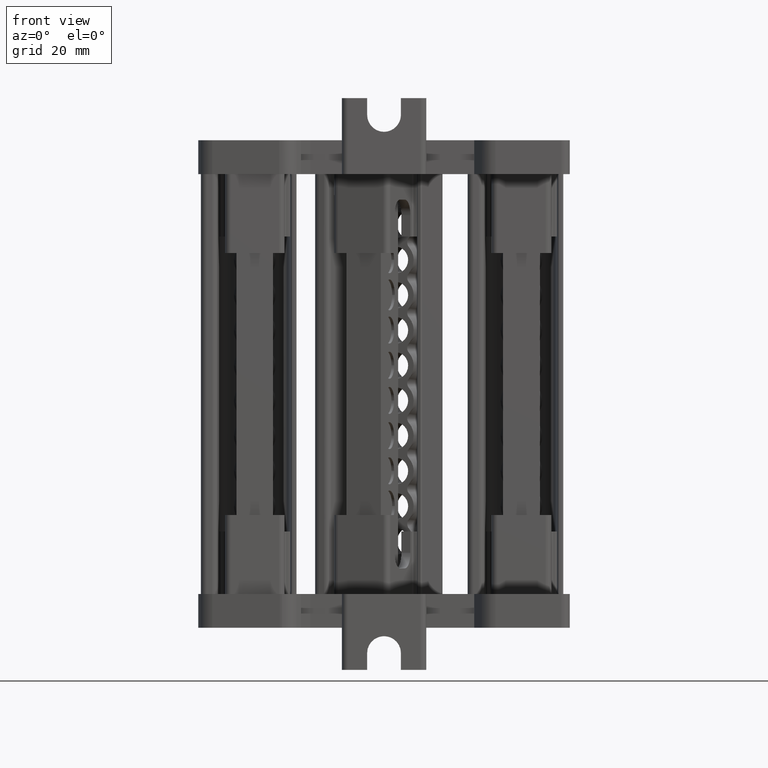
[diagram: clean part render]
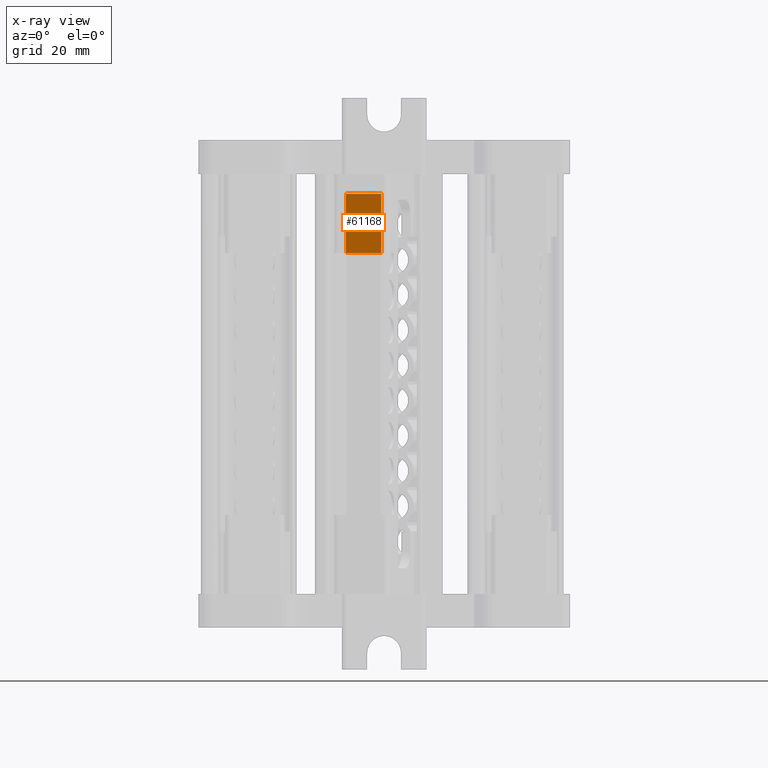
[diagram: x-ray — body ghosted, one internal face saturated and labeled with its STEP entity id]
A machine part, front view, then the same camera in x-ray: the body is ghosted and one INTERNAL B-rep face — a face not visible from any outside direction — is saturated and labeled: STEP entity #61168.
In plain terms, the highlighted planar face has unit normal (-0.342, -0.9397, 0).
Its self-contained STEP definition (entity closure, byte-faithful):
#10859 = CARTESIAN_POINT ( 'NONE',  ( -298.3908377496268300, 203.9591782187405300, 86.29336666203808200 ) ) ;
#10895 = CARTESIAN_POINT ( 'NONE',  ( -304.6686897275751600, 206.2441223605529800, 86.29336666203808200 ) ) ;
#11036 = CARTESIAN_POINT ( 'NONE',  ( -298.3908377496268300, 203.9591782187405300, 96.78362721523144800 ) ) ;
#11325 = CARTESIAN_POINT ( 'NONE',  ( -304.6686897275751600, 206.2441223605529800, 96.78362721523144800 ) ) ;
#18421 = ORIENTED_EDGE ( 'NONE', *, *, #44321, .F. ) ;
#18433 = ORIENTED_EDGE ( 'NONE', *, *, #43891, .F. ) ;
#18435 = ORIENTED_EDGE ( 'NONE', *, *, #43943, .F. ) ;
#18484 = ORIENTED_EDGE ( 'NONE', *, *, #44290, .T. ) ;
#37486 = VECTOR ( 'NONE', #56392, 1000.000000000000000 ) ;
#37526 = VECTOR ( 'NONE', #56286, 1000.000000000000000 ) ;
#38194 = VECTOR ( 'NONE', #69273, 999.9999999999998900 ) ;
#38251 = VECTOR ( 'NONE', #69355, 999.9999999999998900 ) ;
#43891 = EDGE_CURVE ( 'NONE', #91796, #91626, #56277, .T. ) ;
#43943 = EDGE_CURVE ( 'NONE', #91663, #91661, #56376, .T. ) ;
#44290 = EDGE_CURVE ( 'NONE', #91663, #91626, #69212, .T. ) ;
#44321 = EDGE_CURVE ( 'NONE', #91661, #91796, #69354, .T. ) ;
#54679 = EDGE_LOOP ( 'NONE', ( #18435, #18484, #18433, #18421 ) ) ;
#56276 = CARTESIAN_POINT ( 'NONE',  ( -304.6686897275751600, 206.2441223605529200, 96.31158751801014300 ) ) ;
#56277 = LINE ( 'NONE', #56276, #37526 ) ;
#56286 = DIRECTION ( 'NONE',  ( -0.0000000000000000000, -0.0000000000000000000, -1.000000000000000000 ) ) ;
#56376 = LINE ( 'NONE', #56387, #37486 ) ;
#56387 = CARTESIAN_POINT ( 'NONE',  ( -298.3908377496268800, 203.9591782187404200, 96.31158751801014300 ) ) ;
#56392 = DIRECTION ( 'NONE',  ( 0.0000000000000000000, 0.0000000000000000000, 1.000000000000000000 ) ) ;
#61168 = ADVANCED_FACE ( 'NONE', ( #107365 ), #107354, .F. ) ;
#69212 = LINE ( 'NONE', #69272, #38194 ) ;
#69272 = CARTESIAN_POINT ( 'NONE',  ( -298.3908377496268300, 203.9591782187405000, 86.29336666203806800 ) ) ;
#69273 = DIRECTION ( 'NONE',  ( -0.9396929629877335300, 0.3420192031324180100, 0.0000000000000000000 ) ) ;
#69354 = LINE ( 'NONE', #69363, #38251 ) ;
#69355 = DIRECTION ( 'NONE',  ( -0.9396929629877335300, 0.3420192031324180100, 0.0000000000000000000 ) ) ;
#69363 = CARTESIAN_POINT ( 'NONE',  ( -298.3908377496268300, 203.9591782187405000, 96.78362721523144800 ) ) ;
#87128 = AXIS2_PLACEMENT_3D ( 'NONE', #107366, #107345, #107358 ) ;
#91626 = VERTEX_POINT ( 'NONE', #10895 ) ;
#91661 = VERTEX_POINT ( 'NONE', #11036 ) ;
#91663 = VERTEX_POINT ( 'NONE', #10859 ) ;
#91796 = VERTEX_POINT ( 'NONE', #11325 ) ;
#107345 = DIRECTION ( 'NONE',  ( -0.3420192031324355600, -0.9396929629877270900, 0.0000000000000000000 ) ) ;
#107354 = PLANE ( 'NONE',  #87128 ) ;
#107358 = DIRECTION ( 'NONE',  ( 0.9396929629877269800, -0.3420192031324355000, 0.0000000000000000000 ) ) ;
#107365 = FACE_OUTER_BOUND ( 'NONE', #54679, .T. ) ;
#107366 = CARTESIAN_POINT ( 'NONE',  ( -304.6686897275751600, 206.2441223605529200, 96.31158751801014300 ) ) ;